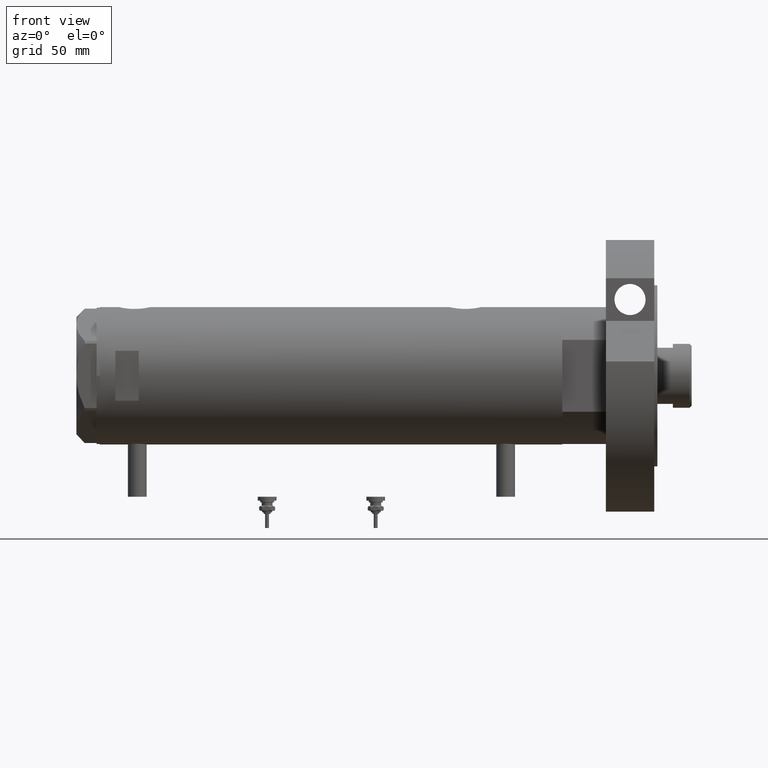
[diagram: clean part render]
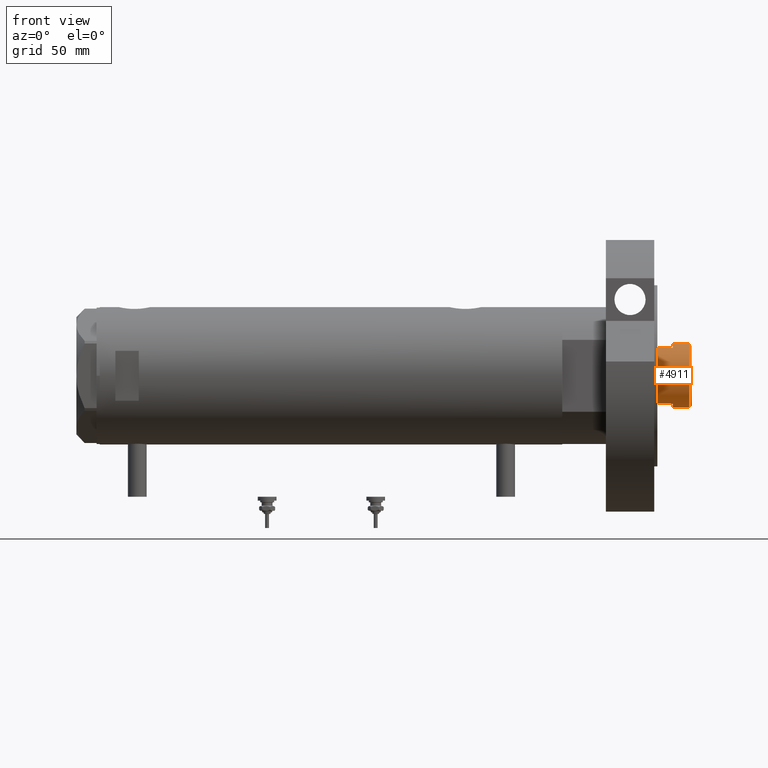
[diagram: same view with one face highlighted and labeled with its STEP entity id]
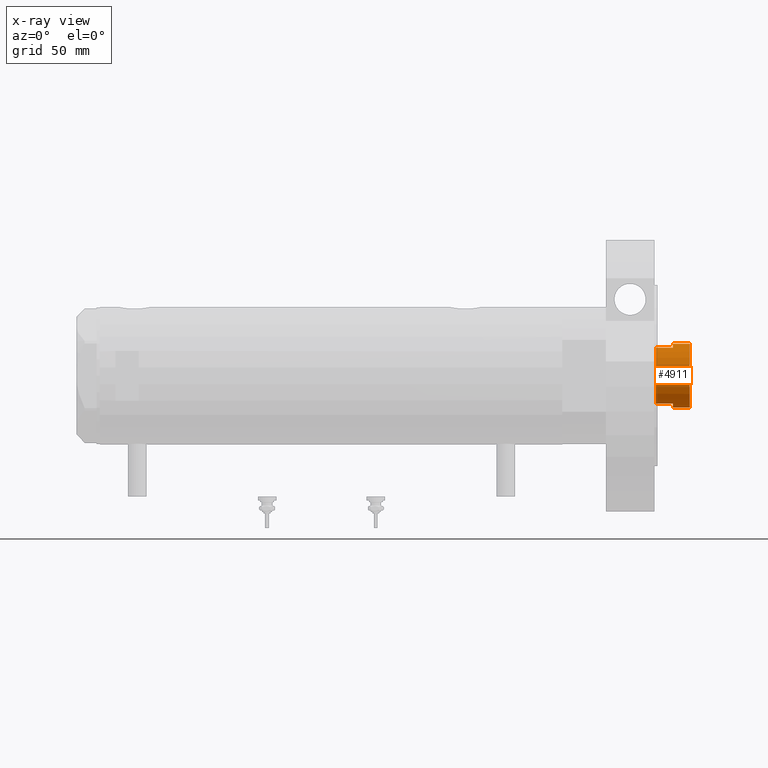
[diagram: x-ray of the same camera — body ghosted, the highlighted face saturated]
A machine part, front view. The second image highlights one B-rep face of the part: STEP entity #4911.
The next image is the same camera in x-ray: the body ghosted, the highlighted face saturated — about 0% of this face is hidden behind the body in this view.
In plain terms, the highlighted cylindrical surface (edge-blend (fillet) strip) has radius 20.5 mm, axis along (-1, -0, 0).
Its self-contained STEP definition (entity closure, byte-faithful):
#100 = VERTEX_POINT ( 'NONE', #3104 ) ;
#215 = CARTESIAN_POINT ( 'NONE',  ( 17.97852886083843060, -9.849999999999994316, 341.3000000000000114 ) ) ;
#242 = LINE ( 'NONE', #6125, #1110 ) ;
#270 = DIRECTION ( 'NONE',  ( 0.000000000000000000, 0.000000000000000000, 1.000000000000000000 ) ) ;
#323 = CARTESIAN_POINT ( 'NONE',  ( 0.000000000000000000, 0.000000000000000000, 341.3000000000000114 ) ) ;
#499 = CARTESIAN_POINT ( 'NONE',  ( 0.000000000000000000, 0.000000000000000000, 341.3000000000000114 ) ) ;
#733 = ORIENTED_EDGE ( 'NONE', *, *, #6471, .T. ) ;
#902 = DIRECTION ( 'NONE',  ( -0.000000000000000000, -0.000000000000000000, -1.000000000000000000 ) ) ;
#1052 = VERTEX_POINT ( 'NONE', #4342 ) ;
#1108 = ORIENTED_EDGE ( 'NONE', *, *, #1883, .T. ) ;
#1110 = VECTOR ( 'NONE', #6577, 1000.000000000000000 ) ;
#1133 = ORIENTED_EDGE ( 'NONE', *, *, #1241, .F. ) ;
#1135 = CARTESIAN_POINT ( 'NONE',  ( -20.50000000000000355, 0.000000000000000000, 341.3000000000000114 ) ) ;
#1241 = EDGE_CURVE ( 'NONE', #7534, #5317, #242, .T. ) ;
#1271 = DIRECTION ( 'NONE',  ( 0.000000000000000000, 0.000000000000000000, 1.000000000000000000 ) ) ;
#1300 = VECTOR ( 'NONE', #1791, 1000.000000000000000 ) ;
#1327 = ORIENTED_EDGE ( 'NONE', *, *, #2449, .T. ) ;
#1380 = VERTEX_POINT ( 'NONE', #3326 ) ;
#1575 = CARTESIAN_POINT ( 'NONE',  ( 20.50000000000000000, 2.510525938252074481E-15, 341.3000000000000114 ) ) ;
#1791 = DIRECTION ( 'NONE',  ( -0.000000000000000000, -0.000000000000000000, -1.000000000000000000 ) ) ;
#1880 = AXIS2_PLACEMENT_3D ( 'NONE', #323, #2673, #3219 ) ;
#1883 = EDGE_CURVE ( 'NONE', #1380, #100, #6486, .T. ) ;
#1979 = DIRECTION ( 'NONE',  ( 0.000000000000000000, 0.000000000000000000, -1.000000000000000000 ) ) ;
#2075 = AXIS2_PLACEMENT_3D ( 'NONE', #499, #2816, #4545 ) ;
#2111 = EDGE_CURVE ( 'NONE', #7534, #2939, #6719, .T. ) ;
#2130 = DIRECTION ( 'NONE',  ( 1.000000000000000000, 0.000000000000000000, 0.000000000000000000 ) ) ;
#2226 = VECTOR ( 'NONE', #902, 1000.000000000000000 ) ;
#2360 = LINE ( 'NONE', #7489, #1300 ) ;
#2449 = EDGE_CURVE ( 'NONE', #2939, #1380, #4601, .T. ) ;
#2486 = AXIS2_PLACEMENT_3D ( 'NONE', #6010, #1271, #3702 ) ;
#2488 = AXIS2_PLACEMENT_3D ( 'NONE', #3162, #270, #6046 ) ;
#2673 = DIRECTION ( 'NONE',  ( -0.000000000000000000, -0.000000000000000000, -1.000000000000000000 ) ) ;
#2816 = DIRECTION ( 'NONE',  ( 0.000000000000000000, 0.000000000000000000, 1.000000000000000000 ) ) ;
#2939 = VERTEX_POINT ( 'NONE', #5962 ) ;
#2963 = CIRCLE ( 'NONE', #2488, 20.50000000000000000 ) ;
#3104 = CARTESIAN_POINT ( 'NONE',  ( -17.97852886083842705, -9.849999999999996092, 341.3000000000000114 ) ) ;
#3162 = CARTESIAN_POINT ( 'NONE',  ( 0.000000000000000000, 0.000000000000000000, 341.3000000000000114 ) ) ;
#3219 = DIRECTION ( 'NONE',  ( -1.000000000000000000, 0.000000000000000000, 0.000000000000000000 ) ) ;
#3326 = CARTESIAN_POINT ( 'NONE',  ( -20.50000000000000000, 0.000000000000000000, 341.3000000000000114 ) ) ;
#3334 = ORIENTED_EDGE ( 'NONE', *, *, #2111, .T. ) ;
#3702 = DIRECTION ( 'NONE',  ( 1.000000000000000000, 0.000000000000000000, 0.000000000000000000 ) ) ;
#3703 = CIRCLE ( 'NONE', #2486, 20.50000000000000355 ) ;
#3743 = ORIENTED_EDGE ( 'NONE', *, *, #6893, .T. ) ;
#3903 = EDGE_CURVE ( 'NONE', #5885, #4864, #6127, .T. ) ;
#4253 = EDGE_CURVE ( 'NONE', #5885, #5317, #2963, .T. ) ;
#4342 = CARTESIAN_POINT ( 'NONE',  ( -17.97852886083842350, -9.850000000000029843, 330.2999999999999545 ) ) ;
#4394 = EDGE_LOOP ( 'NONE', ( #1133, #3334, #1327, #1108, #3743, #733, #5897, #6077 ) ) ;
#4545 = DIRECTION ( 'NONE',  ( 1.000000000000000000, 0.000000000000000000, 0.000000000000000000 ) ) ;
#4601 = LINE ( 'NONE', #1135, #6493 ) ;
#4775 = AXIS2_PLACEMENT_3D ( 'NONE', #6495, #1979, #2130 ) ;
#4864 = VERTEX_POINT ( 'NONE', #7172 ) ;
#4911 = ADVANCED_FACE ( 'NONE', ( #6525 ), #7280, .T. ) ;
#5317 = VERTEX_POINT ( 'NONE', #1575 ) ;
#5885 = VERTEX_POINT ( 'NONE', #215 ) ;
#5897 = ORIENTED_EDGE ( 'NONE', *, *, #3903, .F. ) ;
#5962 = CARTESIAN_POINT ( 'NONE',  ( -20.50000000000000355, 0.000000000000000000, 351.8999999999999773 ) ) ;
#6010 = CARTESIAN_POINT ( 'NONE',  ( 0.000000000000000000, 0.000000000000000000, 330.2999999999999545 ) ) ;
#6046 = DIRECTION ( 'NONE',  ( 1.000000000000000000, 0.000000000000000000, 0.000000000000000000 ) ) ;
#6077 = ORIENTED_EDGE ( 'NONE', *, *, #4253, .T. ) ;
#6125 = CARTESIAN_POINT ( 'NONE',  ( 20.50000000000000355, 2.510525938252074481E-15, 341.3000000000000114 ) ) ;
#6127 = LINE ( 'NONE', #7279, #2226 ) ;
#6471 = EDGE_CURVE ( 'NONE', #1052, #4864, #3703, .T. ) ;
#6486 = CIRCLE ( 'NONE', #2075, 20.50000000000000000 ) ;
#6493 = VECTOR ( 'NONE', #6552, 1000.000000000000000 ) ;
#6495 = CARTESIAN_POINT ( 'NONE',  ( 0.000000000000000000, 0.000000000000000000, 351.8999999999999773 ) ) ;
#6525 = FACE_OUTER_BOUND ( 'NONE', #4394, .T. ) ;
#6552 = DIRECTION ( 'NONE',  ( -0.000000000000000000, -0.000000000000000000, -1.000000000000000000 ) ) ;
#6577 = DIRECTION ( 'NONE',  ( -0.000000000000000000, -0.000000000000000000, -1.000000000000000000 ) ) ;
#6694 = CARTESIAN_POINT ( 'NONE',  ( 20.50000000000000355, 2.510525938252074481E-15, 351.8999999999999773 ) ) ;
#6719 = CIRCLE ( 'NONE', #4775, 20.50000000000000355 ) ;
#6893 = EDGE_CURVE ( 'NONE', #100, #1052, #2360, .T. ) ;
#7172 = CARTESIAN_POINT ( 'NONE',  ( 17.97852886083843060, -9.850000000000019185, 330.2999999999999545 ) ) ;
#7279 = CARTESIAN_POINT ( 'NONE',  ( 17.97852886083843060, -9.849999999999994316, 341.3000000000000114 ) ) ;
#7280 = CYLINDRICAL_SURFACE ( 'NONE', #1880, 20.50000000000000355 ) ;
#7489 = CARTESIAN_POINT ( 'NONE',  ( -17.97852886083842350, -9.850000000000001421, 341.3000000000000114 ) ) ;
#7534 = VERTEX_POINT ( 'NONE', #6694 ) ;